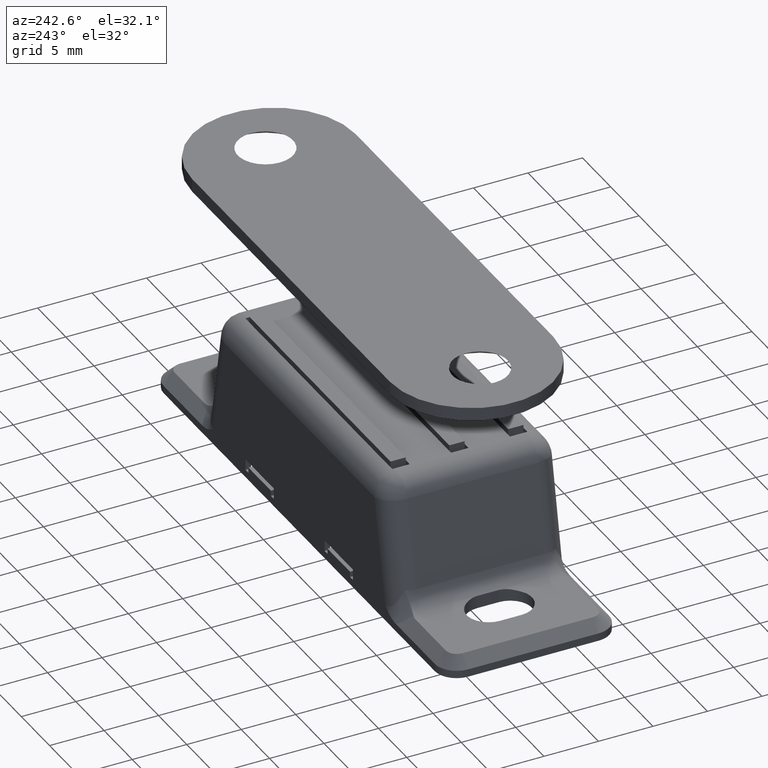
[diagram: clean part render]
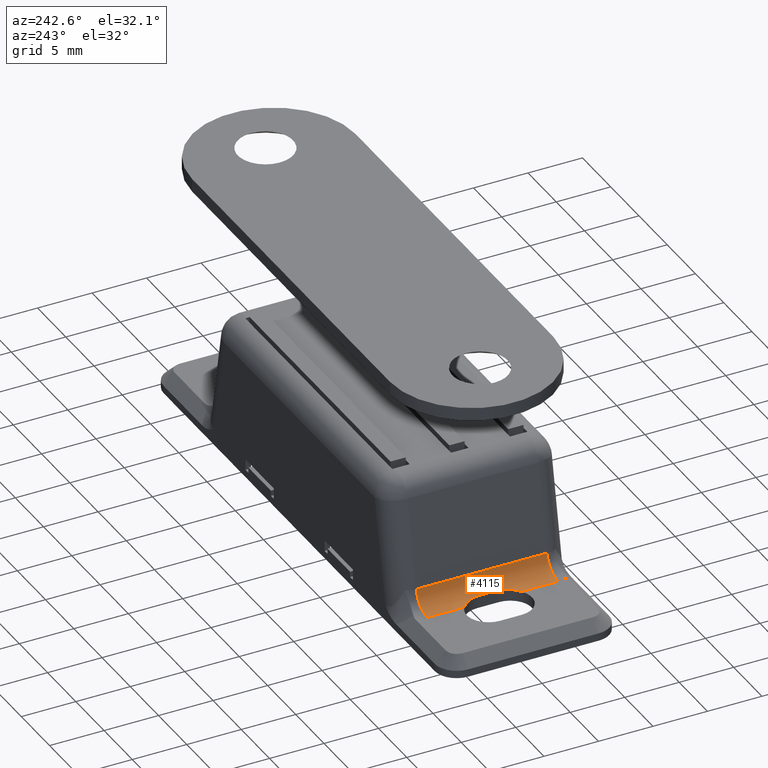
[diagram: same view with one face highlighted and labeled with its STEP entity id]
A machine part, auxiliary view. The second image highlights one B-rep face of the part: STEP entity #4115.
In plain terms, the highlighted cylindrical surface (edge-blend (fillet) strip) has radius 2 mm, axis along (0, 1, 0).
Its self-contained STEP definition (entity closure, byte-faithful):
#108=B_SPLINE_CURVE_WITH_KNOTS('',3,(#5977,#5978,#5979,#5980,#5981,#5982,
#5983,#5984),.UNSPECIFIED.,.F.,.F.,(4,2,2,4),(0.308765997079559,0.345393827505287,
0.394327714132815,0.492195487387872),.UNSPECIFIED.);
#129=B_SPLINE_CURVE_WITH_KNOTS('',3,(#6694,#6695,#6696,#6697,#6698,#6699,
#6700,#6701),.UNSPECIFIED.,.F.,.F.,(4,2,2,4),(0.,0.0692096603653858,0.138419320730772,
0.178329329965393),.UNSPECIFIED.);
#188=CYLINDRICAL_SURFACE('',#4424,2.);
#267=CIRCLE('',#4422,2.);
#268=CIRCLE('',#4425,2.);
#405=FACE_OUTER_BOUND('',#642,.T.);
#642=EDGE_LOOP('',(#3158,#3159,#3160,#3161,#3162,#3163,#3164,#3165));
#964=LINE('',#6692,#1404);
#965=LINE('',#6702,#1405);
#966=LINE('',#6704,#1406);
#967=LINE('',#6707,#1407);
#1404=VECTOR('',#5118,2.);
#1405=VECTOR('',#5119,3.39529863514703);
#1406=VECTOR('',#5120,12.);
#1407=VECTOR('',#5123,3.39529863514703);
#1751=VERTEX_POINT('',#5974);
#1752=VERTEX_POINT('',#5976);
#1846=VERTEX_POINT('',#6678);
#1847=VERTEX_POINT('',#6680);
#1849=VERTEX_POINT('',#6691);
#1850=VERTEX_POINT('',#6693);
#1851=VERTEX_POINT('',#6703);
#1852=VERTEX_POINT('',#6705);
#2172=EDGE_CURVE('',#1752,#1751,#108,.T.);
#2331=EDGE_CURVE('',#1846,#1847,#267,.T.);
#2334=EDGE_CURVE('',#1751,#1849,#964,.T.);
#2335=EDGE_CURVE('',#1850,#1849,#129,.F.);
#2336=EDGE_CURVE('',#1850,#1847,#965,.T.);
#2337=EDGE_CURVE('',#1846,#1851,#966,.T.);
#2338=EDGE_CURVE('',#1851,#1852,#268,.T.);
#2339=EDGE_CURVE('',#1852,#1752,#967,.T.);
#3158=ORIENTED_EDGE('',*,*,#2172,.T.);
#3159=ORIENTED_EDGE('',*,*,#2334,.T.);
#3160=ORIENTED_EDGE('',*,*,#2335,.F.);
#3161=ORIENTED_EDGE('',*,*,#2336,.T.);
#3162=ORIENTED_EDGE('',*,*,#2331,.F.);
#3163=ORIENTED_EDGE('',*,*,#2337,.T.);
#3164=ORIENTED_EDGE('',*,*,#2338,.T.);
#3165=ORIENTED_EDGE('',*,*,#2339,.T.);
#4115=ADVANCED_FACE('',(#405),#188,.F.);
#4422=AXIS2_PLACEMENT_3D('',#6681,#5112,#5113);
#4424=AXIS2_PLACEMENT_3D('',#6690,#5116,#5117);
#4425=AXIS2_PLACEMENT_3D('',#6706,#5121,#5122);
#5112=DIRECTION('center_axis',(0.,1.,0.));
#5113=DIRECTION('ref_axis',(0.981627183447661,0.,-0.190808995376562));
#5116=DIRECTION('center_axis',(0.,1.,0.));
#5117=DIRECTION('ref_axis',(0.636078220277757,0.,-0.771624583387726));
#5118=DIRECTION('',(0.,-1.,0.));
#5119=DIRECTION('',(0.,-1.,0.));
#5120=DIRECTION('',(0.,1.,0.));
#5121=DIRECTION('center_axis',(0.,1.,0.));
#5122=DIRECTION('ref_axis',(0.981627183447661,0.,-0.190808995376561));
#5123=DIRECTION('',(0.,-1.,0.));
#5974=CARTESIAN_POINT('',(-18.,0.999999999999999,1.86972962158439));
#5976=CARTESIAN_POINT('',(-18.8062942030638,2.60470136485297,1.7));
#5977=CARTESIAN_POINT('Ctrl Pts',(-18.8062942030638,2.60470136485296,1.70000000000001));
#5978=CARTESIAN_POINT('Ctrl Pts',(-18.7078769167882,2.53149068047323,1.70000000000001));
#5979=CARTESIAN_POINT('Ctrl Pts',(-18.6155010815791,2.44862937983645,1.70732556388154));
#5980=CARTESIAN_POINT('Ctrl Pts',(-18.4189146406968,2.23596535176664,1.73457193489047));
#5981=CARTESIAN_POINT('Ctrl Pts',(-18.3211967135254,2.09968167001939,1.75796126508844));
#5982=CARTESIAN_POINT('Ctrl Pts',(-18.0832617133247,1.66093145277689,1.8279519726703));
#5983=CARTESIAN_POINT('Ctrl Pts',(-18.,1.32622591085019,1.86972962158438));
#5984=CARTESIAN_POINT('Ctrl Pts',(-18.,1.,1.86972962158438));
#6678=CARTESIAN_POINT('',(-16.8430398361685,-6.,3.31838200924689));
#6680=CARTESIAN_POINT('',(-18.8062942030638,-6.,1.70000000000001));
#6681=CARTESIAN_POINT('Origin',(-18.8062942030638,-6.,3.70000000000001));
#6690=CARTESIAN_POINT('Origin',(-18.8062942030638,0.,3.70000000000001));
#6691=CARTESIAN_POINT('',(-18.,-1.,1.86972962158439));
#6692=CARTESIAN_POINT('',(-18.,0.,1.86972962158439));
#6693=CARTESIAN_POINT('',(-18.8062942030638,-2.60470136485297,1.7));
#6694=CARTESIAN_POINT('Ctrl Pts',(-18.,-1.,1.86972962158438));
#6695=CARTESIAN_POINT('Ctrl Pts',(-18.,-1.23069886788462,1.86972962158438));
#6696=CARTESIAN_POINT('Ctrl Pts',(-18.0422858108955,-1.47626343200348,1.84942451114026));
#6697=CARTESIAN_POINT('Ctrl Pts',(-18.2140922596288,-1.93274148252207,1.78750579436187));
#6698=CARTESIAN_POINT('Ctrl Pts',(-18.3435272881605,-2.14400699297524,1.74827326477667));
#6699=CARTESIAN_POINT('Ctrl Pts',(-18.5817134066206,-2.41632344380331,1.71069321452385));
#6700=CARTESIAN_POINT('Ctrl Pts',(-18.6906988845438,-2.51871228000618,1.70000000000001));
#6701=CARTESIAN_POINT('Ctrl Pts',(-18.8062942030638,-2.60470136485296,1.70000000000001));
#6702=CARTESIAN_POINT('',(-18.8062942030638,0.,1.70000000000001));
#6703=CARTESIAN_POINT('',(-16.8430398361685,6.,3.31838200924689));
#6704=CARTESIAN_POINT('',(-16.8430398361685,0.,3.31838200924689));
#6705=CARTESIAN_POINT('',(-18.8062942030638,6.,1.70000000000001));
#6706=CARTESIAN_POINT('Origin',(-18.8062942030638,6.,3.70000000000001));
#6707=CARTESIAN_POINT('',(-18.8062942030638,0.,1.70000000000001));